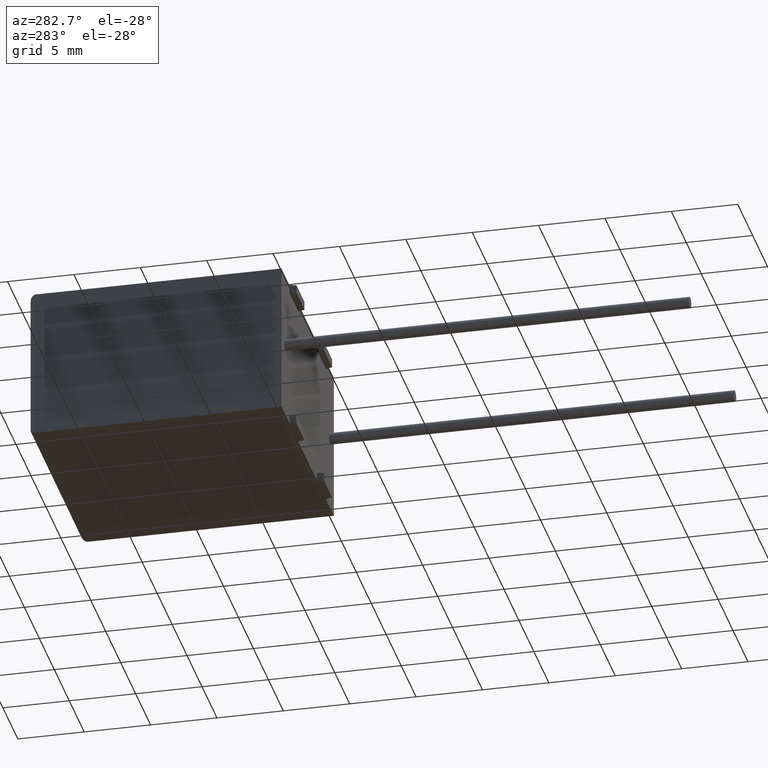
[diagram: clean part render]
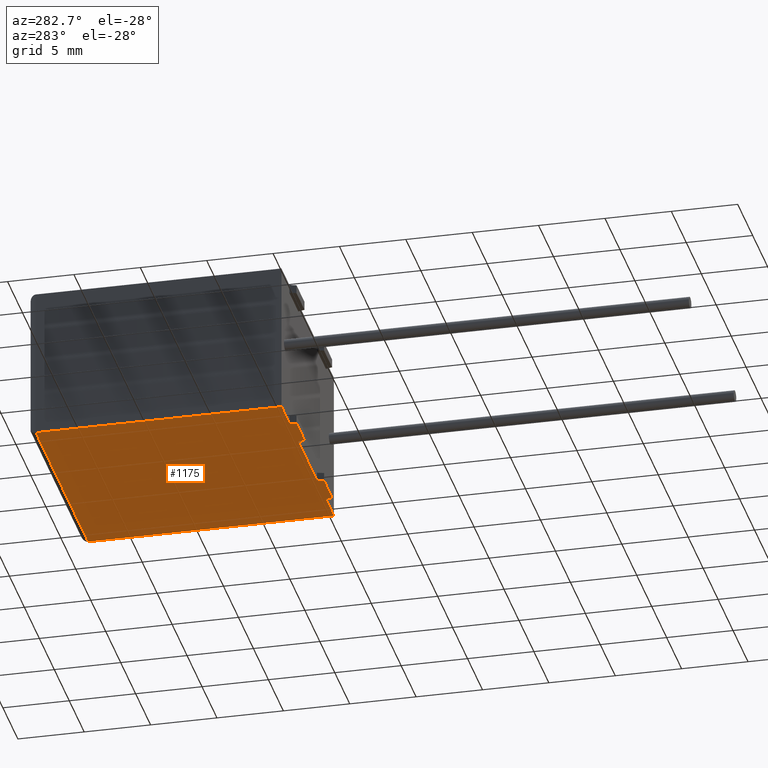
[diagram: same view with one face highlighted and labeled with its STEP entity id]
A machine part, auxiliary view. The second image highlights one B-rep face of the part: STEP entity #1175.
In plain terms, the highlighted planar face has unit normal (0, 0, -1).
Its self-contained STEP definition (entity closure, byte-faithful):
#42 = EDGE_CURVE ( 'NONE', #50, #1957, #348, .T. ) ;
#50 = VERTEX_POINT ( 'NONE', #398 ) ;
#59 = CARTESIAN_POINT ( 'NONE',  ( 2.650000000000001200, 0.0000000000000000000, 0.0000000000000000000 ) ) ;
#65 = VERTEX_POINT ( 'NONE', #653 ) ;
#79 = LINE ( 'NONE', #3047, #345 ) ;
#345 = VECTOR ( 'NONE', #778, 1000.000000000000100 ) ;
#348 = LINE ( 'NONE', #689, #2806 ) ;
#383 = EDGE_CURVE ( 'NONE', #1424, #50, #79, .T. ) ;
#398 = CARTESIAN_POINT ( 'NONE',  ( 2.800000000000001200, -0.4999999999999997800, 0.0000000000000000000 ) ) ;
#464 = EDGE_CURVE ( 'NONE', #2415, #2826, #1808, .T. ) ;
#465 = LINE ( 'NONE', #2187, #2389 ) ;
#598 = ORIENTED_EDGE ( 'NONE', *, *, #1795, .F. ) ;
#626 = DIRECTION ( 'NONE',  ( -0.2873478855663453300, -0.9578262852211513200, 0.0000000000000000000 ) ) ;
#643 = VERTEX_POINT ( 'NONE', #3217 ) ;
#653 = CARTESIAN_POINT ( 'NONE',  ( 5.627500000000000400, 3.445849931100865400E-016, 0.0000000000000000000 ) ) ;
#685 = CARTESIAN_POINT ( 'NONE',  ( 5.477500000000001800, -0.4999999999999997800, 0.0000000000000000000 ) ) ;
#689 = CARTESIAN_POINT ( 'NONE',  ( 2.800000000000001200, -0.4999999999999997800, 0.0000000000000000000 ) ) ;
#778 = DIRECTION ( 'NONE',  ( 0.2873478855663453300, -0.9578262852211513200, 0.0000000000000000000 ) ) ;
#807 = VERTEX_POINT ( 'NONE', #2328 ) ;
#815 = LINE ( 'NONE', #1606, #1897 ) ;
#832 = DIRECTION ( 'NONE',  ( 1.000000000000000000, 0.0000000000000000000, 0.0000000000000000000 ) ) ;
#899 = ORIENTED_EDGE ( 'NONE', *, *, #1092, .F. ) ;
#984 = DIRECTION ( 'NONE',  ( -1.000000000000000000, 0.0000000000000000000, -0.0000000000000000000 ) ) ;
#1006 = DIRECTION ( 'NONE',  ( 1.000000000000000000, -0.0000000000000000000, -0.0000000000000000000 ) ) ;
#1021 = DIRECTION ( 'NONE',  ( 1.000000000000000000, 0.0000000000000000000, 0.0000000000000000000 ) ) ;
#1045 = VECTOR ( 'NONE', #1006, 1000.000000000000000 ) ;
#1060 = CARTESIAN_POINT ( 'NONE',  ( 0.0000000000000000000, 18.50000000000000000, 0.0000000000000000000 ) ) ;
#1061 = EDGE_CURVE ( 'NONE', #3127, #807, #1973, .T. ) ;
#1088 = EDGE_CURVE ( 'NONE', #1744, #3127, #3213, .T. ) ;
#1092 = EDGE_CURVE ( 'NONE', #1464, #2826, #465, .T. ) ;
#1103 = CARTESIAN_POINT ( 'NONE',  ( 14.85000000000000000, 1.622657008870243500E-016, 0.0000000000000000000 ) ) ;
#1108 = VECTOR ( 'NONE', #1556, 1000.000000000000100 ) ;
#1131 = DIRECTION ( 'NONE',  ( -1.000000000000000000, 0.0000000000000000000, 0.0000000000000000000 ) ) ;
#1156 = PLANE ( 'NONE',  #2656 ) ;
#1159 = LINE ( 'NONE', #1911, #1809 ) ;
#1175 = ADVANCED_FACE ( 'NONE', ( #1971 ), #1156, .T. ) ;
#1261 = EDGE_CURVE ( 'NONE', #1957, #65, #2053, .T. ) ;
#1280 = ORIENTED_EDGE ( 'NONE', *, *, #3120, .F. ) ;
#1358 = ORIENTED_EDGE ( 'NONE', *, *, #1061, .T. ) ;
#1384 = ORIENTED_EDGE ( 'NONE', *, *, #1088, .T. ) ;
#1398 = CARTESIAN_POINT ( 'NONE',  ( 0.0000000000000000000, 0.0000000000000000000, 0.0000000000000000000 ) ) ;
#1424 = VERTEX_POINT ( 'NONE', #59 ) ;
#1458 = ORIENTED_EDGE ( 'NONE', *, *, #383, .F. ) ;
#1464 = VERTEX_POINT ( 'NONE', #1637 ) ;
#1512 = VECTOR ( 'NONE', #2621, 1000.000000000000000 ) ;
#1514 = ORIENTED_EDGE ( 'NONE', *, *, #1261, .F. ) ;
#1526 = CARTESIAN_POINT ( 'NONE',  ( 5.477500000000001800, -0.4999999999999997800, 0.0000000000000000000 ) ) ;
#1527 = ORIENTED_EDGE ( 'NONE', *, *, #2946, .F. ) ;
#1550 = CARTESIAN_POINT ( 'NONE',  ( 0.0000000000000000000, 0.0000000000000000000, 0.0000000000000000000 ) ) ;
#1556 = DIRECTION ( 'NONE',  ( 0.2873478855663437700, 0.9578262852211517600, 0.0000000000000000000 ) ) ;
#1559 = ORIENTED_EDGE ( 'NONE', *, *, #464, .T. ) ;
#1606 = CARTESIAN_POINT ( 'NONE',  ( 0.0000000000000000000, 0.0000000000000000000, 0.0000000000000000000 ) ) ;
#1637 = CARTESIAN_POINT ( 'NONE',  ( 17.50000000000000000, 0.0000000000000000000, 0.0000000000000000000 ) ) ;
#1662 = CARTESIAN_POINT ( 'NONE',  ( 12.02250000000000100, -0.4999999999999997800, 0.0000000000000000000 ) ) ;
#1716 = CARTESIAN_POINT ( 'NONE',  ( 0.0000000000000000000, 0.0000000000000000000, 0.0000000000000000000 ) ) ;
#1744 = VERTEX_POINT ( 'NONE', #3252 ) ;
#1774 = EDGE_CURVE ( 'NONE', #2571, #1744, #1951, .T. ) ;
#1781 = VECTOR ( 'NONE', #1021, 1000.000000000000000 ) ;
#1795 = EDGE_CURVE ( 'NONE', #2571, #1464, #2083, .T. ) ;
#1808 = LINE ( 'NONE', #2304, #1045 ) ;
#1809 = VECTOR ( 'NONE', #2936, 1000.000000000000000 ) ;
#1897 = VECTOR ( 'NONE', #832, 1000.000000000000000 ) ;
#1911 = CARTESIAN_POINT ( 'NONE',  ( 0.0000000000000000000, 0.0000000000000000000, 0.0000000000000000000 ) ) ;
#1938 = DIRECTION ( 'NONE',  ( 0.0000000000000000000, 1.000000000000000000, 0.0000000000000000000 ) ) ;
#1951 = LINE ( 'NONE', #2398, #2582 ) ;
#1957 = VERTEX_POINT ( 'NONE', #685 ) ;
#1971 = FACE_OUTER_BOUND ( 'NONE', #2682, .T. ) ;
#1973 = LINE ( 'NONE', #2113, #2243 ) ;
#1994 = DIRECTION ( 'NONE',  ( 0.0000000000000000000, 0.0000000000000000000, -1.000000000000000000 ) ) ;
#2034 = ORIENTED_EDGE ( 'NONE', *, *, #1774, .T. ) ;
#2053 = LINE ( 'NONE', #1526, #1108 ) ;
#2067 = LINE ( 'NONE', #1550, #1781 ) ;
#2083 = LINE ( 'NONE', #1398, #1512 ) ;
#2113 = CARTESIAN_POINT ( 'NONE',  ( 12.02250000000000100, -0.4999999999999997800, 0.0000000000000000000 ) ) ;
#2124 = DIRECTION ( 'NONE',  ( -0.2873478855663437700, 0.9578262852211517600, 0.0000000000000000000 ) ) ;
#2166 = CARTESIAN_POINT ( 'NONE',  ( 14.70000000000000100, -0.4999999999999997800, 0.0000000000000000000 ) ) ;
#2187 = CARTESIAN_POINT ( 'NONE',  ( 17.50000000000000000, 0.0000000000000000000, 0.0000000000000000000 ) ) ;
#2205 = DIRECTION ( 'NONE',  ( 1.000000000000000000, 0.0000000000000000000, 0.0000000000000000000 ) ) ;
#2243 = VECTOR ( 'NONE', #2124, 1000.000000000000100 ) ;
#2304 = CARTESIAN_POINT ( 'NONE',  ( 17.50000000000000000, 18.50000000000000000, 0.0000000000000000000 ) ) ;
#2328 = CARTESIAN_POINT ( 'NONE',  ( 11.87250000000000000, 0.0000000000000000000, 0.0000000000000000000 ) ) ;
#2389 = VECTOR ( 'NONE', #1938, 1000.000000000000000 ) ;
#2398 = CARTESIAN_POINT ( 'NONE',  ( 14.85000000000000000, 1.622657008870243500E-016, 0.0000000000000000000 ) ) ;
#2415 = VERTEX_POINT ( 'NONE', #1060 ) ;
#2456 = ORIENTED_EDGE ( 'NONE', *, *, #42, .F. ) ;
#2560 = VECTOR ( 'NONE', #1131, 1000.000000000000000 ) ;
#2571 = VERTEX_POINT ( 'NONE', #1103 ) ;
#2578 = EDGE_CURVE ( 'NONE', #643, #1424, #815, .T. ) ;
#2582 = VECTOR ( 'NONE', #626, 1000.000000000000100 ) ;
#2583 = ORIENTED_EDGE ( 'NONE', *, *, #2578, .F. ) ;
#2621 = DIRECTION ( 'NONE',  ( 1.000000000000000000, 0.0000000000000000000, 0.0000000000000000000 ) ) ;
#2656 = AXIS2_PLACEMENT_3D ( 'NONE', #1716, #1994, #984 ) ;
#2682 = EDGE_LOOP ( 'NONE', ( #1280, #1559, #899, #598, #2034, #1384, #1358, #1527, #1514, #2456, #1458, #2583 ) ) ;
#2746 = CARTESIAN_POINT ( 'NONE',  ( 17.50000000000000000, 18.50000000000000000, 0.0000000000000000000 ) ) ;
#2806 = VECTOR ( 'NONE', #2205, 1000.000000000000000 ) ;
#2826 = VERTEX_POINT ( 'NONE', #2746 ) ;
#2936 = DIRECTION ( 'NONE',  ( -0.0000000000000000000, -1.000000000000000000, -0.0000000000000000000 ) ) ;
#2946 = EDGE_CURVE ( 'NONE', #65, #807, #2067, .T. ) ;
#3047 = CARTESIAN_POINT ( 'NONE',  ( 2.650000000000001200, 1.622657008870243500E-016, 0.0000000000000000000 ) ) ;
#3120 = EDGE_CURVE ( 'NONE', #2415, #643, #1159, .T. ) ;
#3127 = VERTEX_POINT ( 'NONE', #1662 ) ;
#3213 = LINE ( 'NONE', #2166, #2560 ) ;
#3217 = CARTESIAN_POINT ( 'NONE',  ( 0.0000000000000000000, 0.0000000000000000000, 0.0000000000000000000 ) ) ;
#3252 = CARTESIAN_POINT ( 'NONE',  ( 14.70000000000000100, -0.4999999999999997800, 0.0000000000000000000 ) ) ;